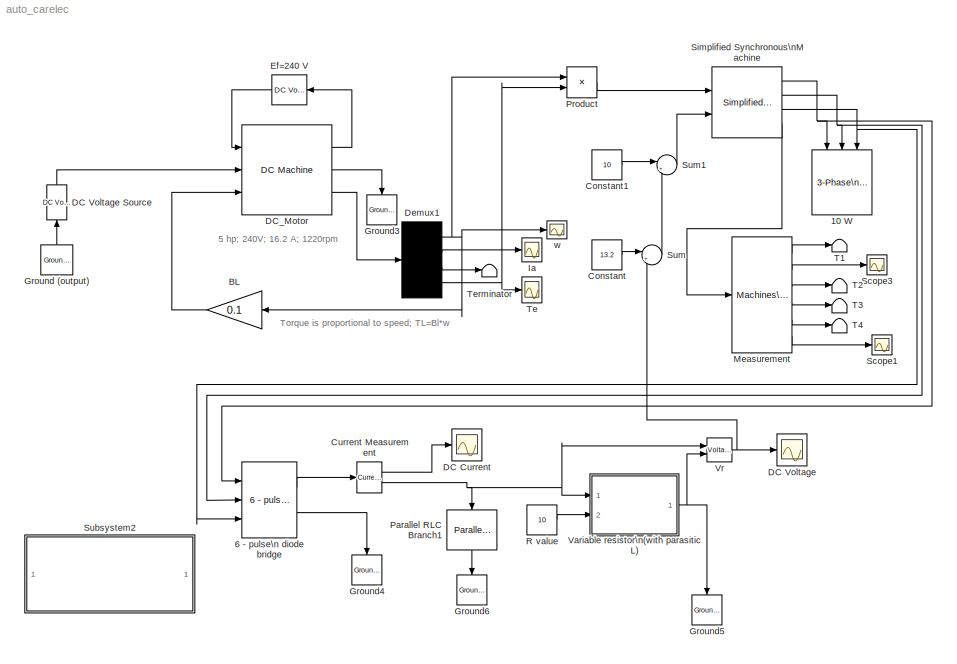
MODEL auto_carelec
KIND model
CONFIG InitFcn = powericon('psbinitsys',bdroot);
BLOCK [Reference] 10 W  REF=powerlib2/Elements/3-Phase\nParallel RLC Load
  P3 = 1
  Ports = [3]
  QC3 = 0
  QL3 = 0
  ShowPortLabels = on
  SourceBlock = powerlib2/Elements/3-Phase\nParallel RLC Load
  SourceType = 3-phase parallel RLC load
  Vpp = 20
  fn = 60
BLOCK [Reference] 6 - pulse\n diode  bridge  REF=powerlib_extras/Three-Phase\nLibrary/6 - pulse\n diode  bridge
  Cs = 100e-09
  Lon = 10e-6
  Ports = [3, 2]
  Ron = 0.01
  Rs = inf
  ShowPortLabels = on
  SourceBlock = powerlib_extras/Three-Phase\nLibrary/6 - pulse\n diode  bridge
  SourceType = Six-pulse diode bridge
  Vf = 0.8
BLOCK [Gain] BL
  Gain = 0.1
BLOCK [Constant] Constant
  Value = 13.2
BLOCK [Constant] Constant1
  Value = 10
BLOCK [Reference] Current Measurement  REF=powerlib2/Measurements/Current Measurement
  OutputType = Magnitude
  PSBOutputType = 01
  PSBequivalent = 0
  PhasorSimulation = off
  Ports = [1, 2]
  ShowPortLabels = on
  SourceBlock = powerlib2/Measurements/Current Measurement
  SourceType = Current Measurement
  Tag = PoWeRsYsTeMmEaSuReMeNt
BLOCK [Scope] DC Current
  DataFormat = StructureWithTime
  LimitDataPoints = off
  NumInputPorts = 1
  Ports = [1]
  YMax = 16.75
  YMin = 15
  ZoomMode = xonly
BLOCK [Scope] DC Voltage
  DataFormat = StructureWithTime
  LimitDataPoints = off
  NumInputPorts = 1
  Ports = [1]
  YMax = 10.1
  YMin = 9.675
  ZoomMode = xonly
BLOCK [Reference] DC Voltage Source  REF=powerlib2/Electrical\nSources/DC Voltage Source
  PSBOutputType = 1
  Ports = [1, 1]
  ShowPortLabels = on
  SourceBlock = powerlib2/Electrical\nSources/DC Voltage Source
  SourceType = DC Voltage Source
  Tag = PoWeRsYsTeMbLoCk
  V = 160
  mesure = None
BLOCK [Reference] DC_Motor  REF=powerlib2/Machines/DC Machine
  Bm = 0
  J = 1
  Laf = 1.8
  PSBOutputType = 110
  Ports = [3, 3]
  RLa = [ 0.6  0.012]
  RLf = [ 240  120]
  ShowPortLabels = on
  SourceBlock = powerlib2/Machines/DC Machine
  SourceType = DC machine
  Tf = 0
  w0 = 1
BLOCK [Demux] Demux1
  Ports = [1, 4]
BLOCK [Reference] Ef=240 V  REF=powerlib2/Electrical\nSources/DC Voltage Source
  PSBOutputType = 1
  Ports = [1, 1]
  ShowPortLabels = on
  SourceBlock = powerlib2/Electrical\nSources/DC Voltage Source
  SourceType = DC Voltage Source
  Tag = PoWeRsYsTeMbLoCk
  V = 240
  mesure = None
BLOCK [Reference] Ground (output)  REF=powerlib2/Connectors/Ground (output)
  PSBOutputType = 1
  Ports = [0, 1]
  ShowPortLabels = on
  SourceBlock = powerlib2/Connectors/Ground (output)
  SourceType = Ground
  Tag = PoWeRsYsTeMbLoCk
BLOCK [Reference] Ground3  REF=powerlib2/Connectors/Ground (input)
  Ports = [1]
  ShowPortLabels = on
  SourceBlock = powerlib2/Connectors/Ground (input)
  SourceType = Ground
  Tag = PoWeRsYsTeMbLoCk
BLOCK [Reference] Ground4  REF=powerlib2/Connectors/Ground (input)
  Ports = [1]
  ShowPortLabels = on
  SourceBlock = powerlib2/Connectors/Ground (input)
  SourceType = Ground
  Tag = PoWeRsYsTeMbLoCk
BLOCK [Reference] Ground5  REF=powerlib2/Connectors/Ground (input)
  Ports = [1]
  ShowPortLabels = on
  SourceBlock = powerlib2/Connectors/Ground (input)
  SourceType = Ground
  Tag = PoWeRsYsTeMbLoCk
BLOCK [Reference] Ground6  REF=powerlib2/Connectors/Ground (input)
  Ports = [1]
  ShowPortLabels = on
  SourceBlock = powerlib2/Connectors/Ground (input)
  SourceType = Ground
  Tag = PoWeRsYsTeMbLoCk
BLOCK [Scope] Ia
  DataFormat = Array
  LimitDataPoints = off
  MaxDataPoints = 500000
  NumInputPorts = 1
  Ports = [1]
  SaveName = Ia
  SaveToWorkspace = on
  TickLabels = on
  TimeRange = 10
  YMax = 400
  YMin = -50
BLOCK [Reference] Measurement  REF=powerlib2/Machines/Machines\nMeasurement\nDemux
  Ports = [1, 6]
  ShowPortLabels = on
  SourceBlock = powerlib2/Machines/Machines\nMeasurement\nDemux
  SourceType = Machine measurements
  asm1 = on
  asm10 = on
  asm11 = on
  asm2 = on
  asm3 = on
  asm4 = on
  asm5 = on
  asm6 = on
  asm7 = on
  asm8 = on
  asm9 = on
  lastType = 1
  machType = Simplified synchronous
  pmsm1 = on
  pmsm2 = on
  pmsm3 = on
  pmsm4 = on
  pmsm5 = on
  pmsm6 = on
  sm1 = on
  sm10 = on
  sm11 = on
  sm115 = off
  sm12 = off
  sm13 = off
  sm14 = off
  sm2 = on
  sm3 = on
  sm4 = on
  sm5 = on
  sm6 = on
  sm7 = on
  sm8 = on
  sm9 = on
  ssm1 = on
  ssm2 = on
  ssm3 = on
  ssm4 = on
  ssm5 = on
  ssm6 = on
BLOCK [Reference] Parallel RLC Branch1  REF=powerlib2/Elements/Parallel RLC Branch
  PSBOutputType = 1
  Ports = [1, 1]
  ShowPortLabels = on
  SourceBlock = powerlib2/Elements/Parallel RLC Branch
  SourceType = Parallel RLC Branch
  Tag = PoWeRsYsTeMbLoCk
  a = 100
  b = inf
  c = 50e-06
  mesure = None
BLOCK [Product] Product
  Ports = [2, 1]
  RndMeth = Floor
BLOCK [Constant] R value
  Value = 10
BLOCK [Scope] Scope1
  DataFormat = StructureWithTime
  LimitDataPoints = off
  NumInputPorts = 1
  Ports = [1]
  YMax = 17.5
  YMin = -17.5
  ZoomMode = xonly
BLOCK [Scope] Scope3
  DataFormat = StructureWithTime
  LimitDataPoints = off
  NumInputPorts = 1
  Ports = [1]
  YMax = 17.5
  YMin = -17.5
  ZoomMode = xonly
BLOCK [Reference] Simplified Synchronous\nMachine   REF=powerlib2/Machines/Simplified Synchronous \nMachine SI Units
  LoadFlowParameters = [1,0,0,0,0]
  PSBOutputType = 1111
  Ports = [2, 4]
  ShowPortLabels = on
  SourceBlock = powerlib2/Machines/Simplified Synchronous \nMachine SI Units
  SourceType = Simplified Synchronous Machine
  Tag = PoWeRsYsTeMbLoCk
  conType = 3-wire Y
  iounits = 1
  x1 = [ 750, 20, 60 ]
  x2 = [ inf, 0, 3]
  x3 = [ 0.1, 2.15e-5 ]
  x4 = [ 0   0   0,0,0   0,0,0 ]
BLOCK [SubSystem] Subsystem2
  AttributesFormatString = \\n
  MaskDisplay = disp('Double click\\nhere for\\n Model Information')
  MaskIconFrame = on
  MaskIconOpaque = on
  MaskIconRotate = none
  MaskIconUnits = autoscale
  MaskInitialization = % t1=matlabroot;\n%cd(t1)\n%test123=which('docE_file.html','-all');\n%web(char(test123));\n
  MinAlgLoopOccurrences = off
  OpenFcn = docfile=which('auto_carelec.html','-all');\nweb(char(docfile));
  Ports = []
  PropExecContextAcrossSSBoundary = on
  RTWSystemCode = Auto
  TreatAsAtomicUnit = off
BLOCK [Sum] Sum
  IconShape = round
  Inputs = |+-
  Ports = [2, 1]
BLOCK [Sum] Sum1
  IconShape = round
  Inputs = |++
  Ports = [2, 1]
BLOCK [Terminator] T1
BLOCK [Terminator] T2
BLOCK [Terminator] T3
BLOCK [Terminator] T4
BLOCK [Scope] Te
  DataFormat = Array
  LimitDataPoints = off
  MaxDataPoints = 500000
  NumInputPorts = 1
  Ports = [1]
  SaveName = Tm
  SaveToWorkspace = on
  TickLabels = on
  TimeRange = 10
  YMax = 800
  YMin = -100
  ZoomMode = xonly
BLOCK [Terminator] Terminator
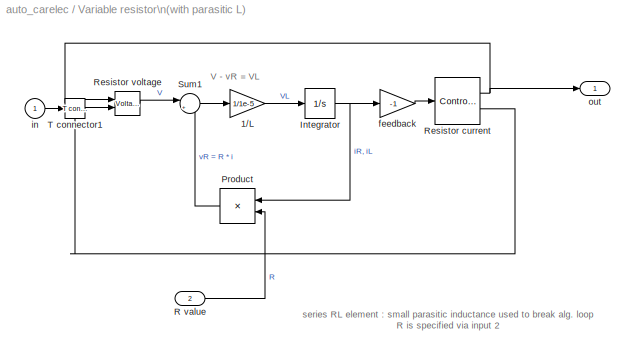
BLOCK [SubSystem] Variable resistor\n(with parasitic L) 
  MaskDisplay = plot(s1-30,s2,s3+30,s4,r1,r2,l1,l2,c1,c2,c3,c4,x1,x2,x3,x4)
  MaskIconFrame = on
  MaskIconOpaque = off
  MaskIconRotate = none
  MaskIconUnits = autoscale
  MaskInitialization = [s1,s2,s3,s4,r1,r2,l1,l2,c1,c2,c3,c4,x1,x2,x3,x4] = powericon('Parallel RLC Branch',1,inf,0);
  MinAlgLoopOccurrences = off
  Ports = [2, 1]
  PropExecContextAcrossSSBoundary = on
  RTWSystemCode = Auto
  TreatAsAtomicUnit = off
BLOCK [Gain] Variable resistor\n(with parasitic L) /1//L
  Gain = 1/1e-5
BLOCK [Integrator] Variable resistor\n(with parasitic L) /Integrator
  Ports = [1, 1]
  ZeroCross = off
BLOCK [Product] Variable resistor\n(with parasitic L) /Product
  Ports = [2, 1]
  RndMeth = Floor
BLOCK [Inport] Variable resistor\n(with parasitic L) /R value
  IconDisplay = Port number
  LatchInput = off
  Port = 2
BLOCK [Reference] Variable resistor\n(with parasitic L) /Resistor current  REF=powerlib2/Electrical\nSources/Controlled Current Source
  Description = source block
  PSBOutputType = 11
  Ports = [1, 2]
  SourceBlock = powerlib2/Electrical\nSources/Controlled Current Source
  SourceType = Controlled Current Source
  Tag = PoWeRsYsTeMbLoCk
  freq = 0
  ia = 0
  initsrc = on
  iph = 0
  mesure = None
  srctyp = DC
BLOCK [Reference] Variable resistor\n(with parasitic L) /Resistor voltage  REF=powerlib2/Measurements/Voltage Measurement
  PSBOutputType = 0
  PSBequivalent = 0
  Ports = [2, 1]
  SourceBlock = powerlib2/Measurements/Voltage Measurement
  SourceType = Voltage Measurement
  Tag = PoWeRsYsTeMmEaSuReMeNt
BLOCK [Sum] Variable resistor\n(with parasitic L) /Sum1
  IconShape = round
  Inputs = |+-
  Ports = [2, 1]
BLOCK [Reference] Variable resistor\n(with parasitic L) /T connector1  REF=powerlib2/Connectors/T connector
  PSBOutputType = 1
  Ports = [1, 1, 1]
  SourceBlock = powerlib2/Connectors/T connector
  SourceType = Bus Bar
  Tag = PoWeRsYsTeMbLoCk
BLOCK [Gain] Variable resistor\n(with parasitic L) /feedback
  Gain = -1
BLOCK [Inport] Variable resistor\n(with parasitic L) /in
  IconDisplay = Port number
  LatchInput = off
  Port = 1
BLOCK [Outport] Variable resistor\n(with parasitic L) /out
  IconDisplay = Port number
BLOCK [Reference] Vr  REF=powerlib2/Measurements/Voltage Measurement
  OutputType = Magnitude
  PSBOutputType = 0
  PSBequivalent = 0
  PhasorSimulation = off
  Ports = [2, 1]
  ShowPortLabels = on
  SourceBlock = powerlib2/Measurements/Voltage Measurement
  SourceType = Voltage Measurement
  Tag = PoWeRsYsTeMmEaSuReMeNt
BLOCK [Scope] w
  DataFormat = Array
  LimitDataPoints = off
  MaxDataPoints = 500000
  NumInputPorts = 1
  Ports = [1]
  SaveName = w
  TickLabels = on
  TimeRange = 10
  YMax = 150
  YMin = 0
ANNOTATION (root): 5 hp; 240V; 16.2 A; 1220rpm
ANNOTATION (root): Torque is proportional to speed; TL=Bl*w
ANNOTATION Variable resistor\n(with parasitic L) : V - vR = VL
ANNOTATION Variable resistor\n(with parasitic L) : series RL element : small parasitic inductance used to break alg. loop\nR is specified via input 2
LINE 6 - pulse\n diode  bridge:1 -> Current Measurement:1
LINE 6 - pulse\n diode  bridge:2 -> Ground4:1
LINE BL:1 -> DC_Motor:3
LINE Constant1:1 -> Sum1:1
LINE Constant:1 -> Sum:1
LINE Current Measurement:1 -> DC Current:1
NET Current Measurement:2 -> Parallel RLC Branch1:1, Variable resistor\n(with parasitic L) :1, Vr:1
LINE DC Voltage Source:1 -> DC_Motor:2
LINE DC_Motor:1 -> Ef=240 V:1
LINE DC_Motor:2 -> Ground3:1
LINE DC_Motor:3 -> Demux1:1
NET Demux1:1 -> BL:1, Product:1, w:1
LINE Demux1:2 -> Ia:1
LINE Demux1:3 -> Terminator:1
NET Demux1:4 -> Product:2, Te:1
LINE Ef=240 V:1 -> DC_Motor:1
LINE Ground (output):1 -> DC Voltage Source:1
LINE Measurement:1 -> T1:1
LINE Measurement:2 -> Scope3:1
LINE Measurement:3 -> T2:1
LINE Measurement:4 -> T3:1
LINE Measurement:5 -> T4:1
LINE Measurement:6 -> Scope1:1
LINE Parallel RLC Branch1:1 -> Ground6:1
LINE Product:1 -> Simplified Synchronous\nMachine :1
LINE R value:1 -> Variable resistor\n(with parasitic L) :2
NET Simplified Synchronous\nMachine :1 -> 10 W:1, 6 - pulse\n diode  bridge:1
NET Simplified Synchronous\nMachine :2 -> 10 W:2, 6 - pulse\n diode  bridge:2
NET Simplified Synchronous\nMachine :3 -> 10 W:3, 6 - pulse\n diode  bridge:3
LINE Simplified Synchronous\nMachine :4 -> Measurement:1
LINE Sum1:1 -> Simplified Synchronous\nMachine :2
LINE Sum:1 -> Sum1:2
LINE Variable resistor\n(with parasitic L) /1//L:1 -> Variable resistor\n(with parasitic L) /Integrator:1
NET Variable resistor\n(with parasitic L) /Integrator:1 -> Variable resistor\n(with parasitic L) /Product:1, Variable resistor\n(with parasitic L) /feedback:1
LINE Variable resistor\n(with parasitic L) /Product:1 -> Variable resistor\n(with parasitic L) /Sum1:2
LINE Variable resistor\n(with parasitic L) /R value:1 -> Variable resistor\n(with parasitic L) /Product:2
NET Variable resistor\n(with parasitic L) /Resistor current:1 -> Variable resistor\n(with parasitic L) /Resistor voltage:1, Variable resistor\n(with parasitic L) /out:1
LINE Variable resistor\n(with parasitic L) /Resistor current:2 -> Variable resistor\n(with parasitic L) /T connector1:enable
LINE Variable resistor\n(with parasitic L) /Resistor voltage:1 -> Variable resistor\n(with parasitic L) /Sum1:1
LINE Variable resistor\n(with parasitic L) /Sum1:1 -> Variable resistor\n(with parasitic L) /1//L:1
LINE Variable resistor\n(with parasitic L) /T connector1:1 -> Variable resistor\n(with parasitic L) /Resistor voltage:2
LINE Variable resistor\n(with parasitic L) /feedback:1 -> Variable resistor\n(with parasitic L) /Resistor current:1
LINE Variable resistor\n(with parasitic L) /in:1 -> Variable resistor\n(with parasitic L) /T connector1:1
NET Variable resistor\n(with parasitic L) :1 -> Ground5:1, Vr:2
NET Vr:1 -> DC Voltage:1, Sum:2
note: NET lines group one-source signal fan-out (src -> all destinations, sorted); 1:1 wires keep LINE
